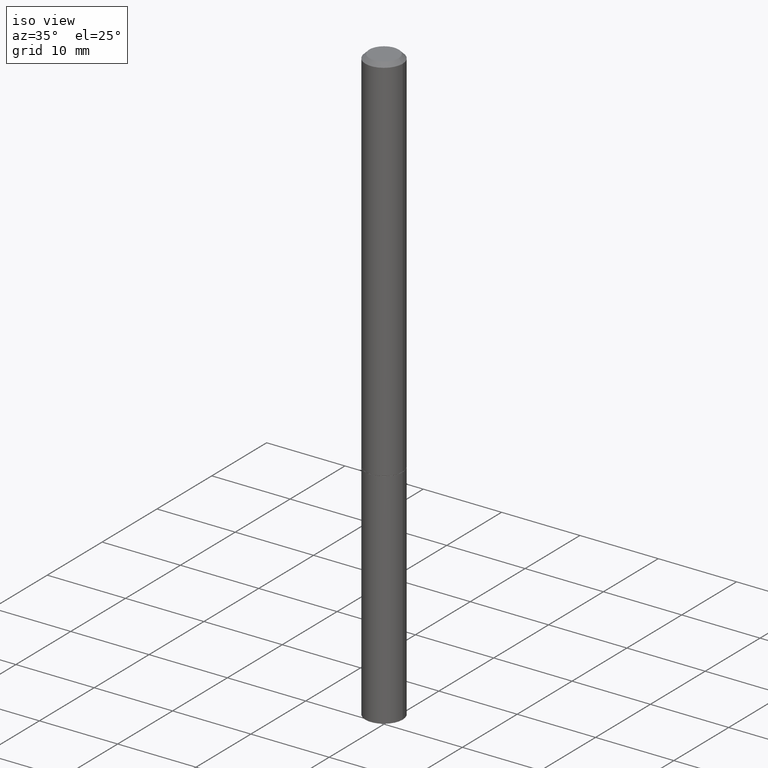
[diagram: clean part render]
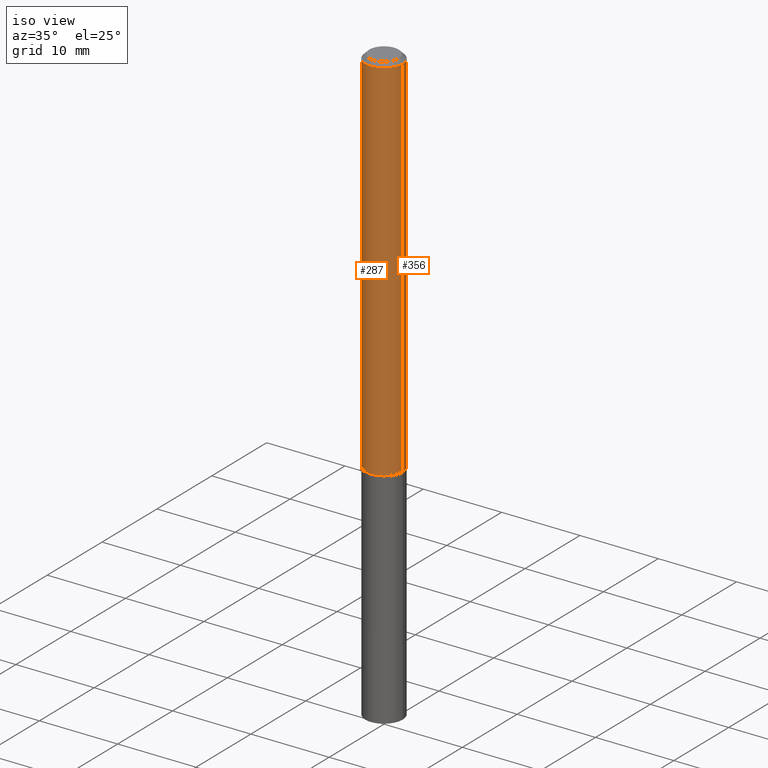
[diagram: same view with one multi-face feature highlighted, each face labeled with its STEP entity id]
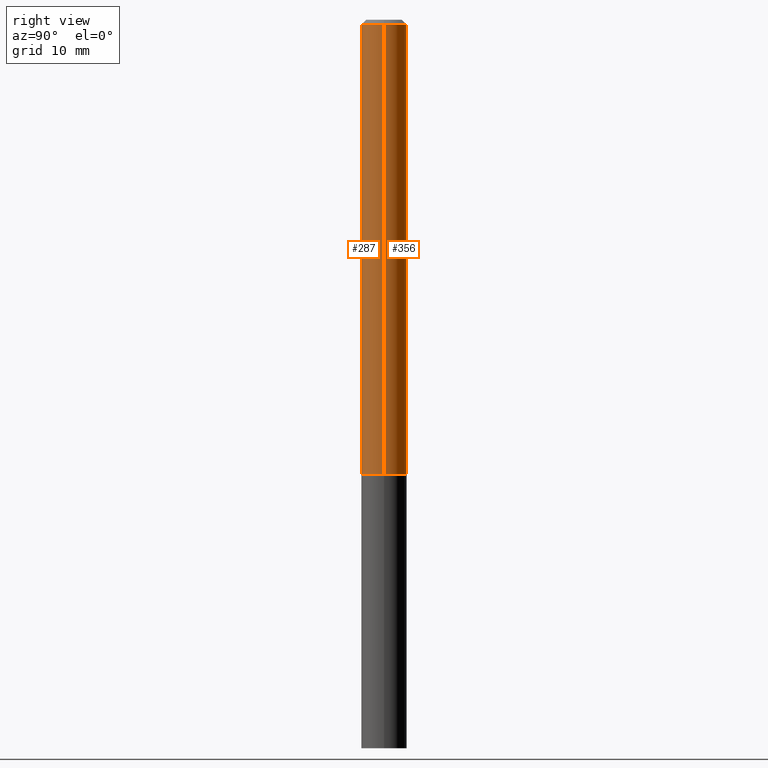
[diagram: same view with one multi-face feature highlighted, each face labeled with its STEP entity id]
A machine part, iso view. The highlighted faces form ONE feature: a constant-radius fillet chain: 2 tangent blend faces with common blend radius 2.3812 mm. The faces share edges in the B-rep.
A second angle (right view) of the same feature is appended — it is thin or edge-on in the first view.
Their STEP definitions:
[1] entity #356 (Cylinder):
#12 = ORIENTED_EDGE ( 'NONE', *, *, #382, .F. ) ;
#29 = EDGE_CURVE ( 'NONE', #230, #170, #193, .T. ) ;
#34 = DIRECTION ( 'NONE',  ( 1.000000000000000000, -6.982962677686261189E-15, 0.000000000000000000 ) ) ;
#50 = CARTESIAN_POINT ( 'NONE',  ( 0.09374999999999988898, -6.546527510330866166E-16, 4.571415727308684201E-30 ) ) ;
#51 = EDGE_CURVE ( 'NONE', #65, #170, #374, .T. ) ;
#62 = CIRCLE ( 'NONE', #181, 0.09375000000000001388 ) ;
#65 = VERTEX_POINT ( 'NONE', #378 ) ;
#102 = CARTESIAN_POINT ( 'NONE',  ( 4.582808542790945516E-29, -6.543036028992054911E-15, -1.874000000000000110 ) ) ;
#105 = DIRECTION ( 'NONE',  ( 1.000000000000000000, -6.982962677686265133E-15, 4.876176775795935793E-29 ) ) ;
#107 = ORIENTED_EDGE ( 'NONE', *, *, #51, .F. ) ;
#116 = VERTEX_POINT ( 'NONE', #125 ) ;
#125 = CARTESIAN_POINT ( 'NONE',  ( 0.09375000000000001388, -7.197688780025142415E-15, -1.874000000000000110 ) ) ;
#129 = ORIENTED_EDGE ( 'NONE', *, *, #187, .T. ) ;
#132 = VECTOR ( 'NONE', #266, 39.37007874015748143 ) ;
#139 = DIRECTION ( 'NONE',  ( -2.445468806185136597E-29, 3.491481338843145583E-15, 1.000000000000000000 ) ) ;
#142 = DIRECTION ( 'NONE',  ( -2.445468806185136597E-29, 3.491481338843145583E-15, 1.000000000000000000 ) ) ;
#143 = DIRECTION ( 'NONE',  ( 1.000000000000000000, -6.982962677686267499E-15, 0.000000000000000000 ) ) ;
#160 = DIRECTION ( 'NONE',  ( -2.445468806185136597E-29, 3.491481338843145583E-15, 1.000000000000000000 ) ) ;
#164 = CARTESIAN_POINT ( 'NONE',  ( -0.09374999999999976408, 5.848231242562229240E-16, -0.02000000000000001429 ) ) ;
#170 = VERTEX_POINT ( 'NONE', #164 ) ;
#181 = AXIS2_PLACEMENT_3D ( 'NONE', #102, #160, #34 ) ;
#187 = EDGE_CURVE ( 'NONE', #116, #230, #62, .T. ) ;
#191 = AXIS2_PLACEMENT_3D ( 'NONE', #211, #139, #143 ) ;
#193 = LINE ( 'NONE', #259, #321 ) ;
#211 = CARTESIAN_POINT ( 'NONE',  ( 4.890937612370275786E-31, -6.982962677686296539E-17, -0.02000000000000001429 ) ) ;
#213 = ORIENTED_EDGE ( 'NONE', *, *, #29, .T. ) ;
#226 = AXIS2_PLACEMENT_3D ( 'NONE', #352, #142, #105 ) ;
#227 = CARTESIAN_POINT ( 'NONE',  ( -0.09375000000000001388, -2.640299013109360447E-15, -1.874000000000000110 ) ) ;
#230 = VERTEX_POINT ( 'NONE', #227 ) ;
#231 = FACE_OUTER_BOUND ( 'NONE', #371, .T. ) ;
#259 = CARTESIAN_POINT ( 'NONE',  ( -0.09374999999999988898, 6.661338147750931354E-16, -4.611501647113968390E-30 ) ) ;
#262 = CYLINDRICAL_SURFACE ( 'NONE', #226, 0.09374999999999988898 ) ;
#266 = DIRECTION ( 'NONE',  ( -2.445468806185136877E-29, 3.491481338843145188E-15, 1.000000000000000000 ) ) ;
#321 = VECTOR ( 'NONE', #369, 39.37007874015748143 ) ;
#347 = LINE ( 'NONE', #50, #132 ) ;
#352 = CARTESIAN_POINT ( 'NONE',  ( 0.000000000000000000, 0.000000000000000000, 0.000000000000000000 ) ) ;
#356 = ADVANCED_FACE ( 'NONE', ( #231 ), #262, .T. ) ;
#369 = DIRECTION ( 'NONE',  ( -2.445468806185136877E-29, 3.491481338843145188E-15, 1.000000000000000000 ) ) ;
#371 = EDGE_LOOP ( 'NONE', ( #129, #213, #107, #12 ) ) ;
#374 = CIRCLE ( 'NONE', #191, 0.09374999999999976408 ) ;
#378 = CARTESIAN_POINT ( 'NONE',  ( 0.09374999999999976408, -7.130013140679424100E-16, -0.02000000000000001429 ) ) ;
#382 = EDGE_CURVE ( 'NONE', #116, #65, #347, .T. ) ;
[2] entity #287 (Cylinder):
#14 = CYLINDRICAL_SURFACE ( 'NONE', #64, 0.09374999999999988898 ) ;
#20 = AXIS2_PLACEMENT_3D ( 'NONE', #92, #217, #337 ) ;
#29 = EDGE_CURVE ( 'NONE', #230, #170, #193, .T. ) ;
#41 = DIRECTION ( 'NONE',  ( -2.445468806185136597E-29, 3.491481338843145583E-15, 1.000000000000000000 ) ) ;
#45 = ORIENTED_EDGE ( 'NONE', *, *, #382, .T. ) ;
#50 = CARTESIAN_POINT ( 'NONE',  ( 0.09374999999999988898, -6.546527510330866166E-16, 4.571415727308684201E-30 ) ) ;
#64 = AXIS2_PLACEMENT_3D ( 'NONE', #264, #41, #207 ) ;
#65 = VERTEX_POINT ( 'NONE', #378 ) ;
#66 = EDGE_CURVE ( 'NONE', #230, #116, #214, .T. ) ;
#70 = ORIENTED_EDGE ( 'NONE', *, *, #66, .T. ) ;
#92 = CARTESIAN_POINT ( 'NONE',  ( 4.890937612370275786E-31, -6.982962677686296539E-17, -0.02000000000000001429 ) ) ;
#112 = CARTESIAN_POINT ( 'NONE',  ( 4.582808542790945516E-29, -6.543036028992054911E-15, -1.874000000000000110 ) ) ;
#116 = VERTEX_POINT ( 'NONE', #125 ) ;
#125 = CARTESIAN_POINT ( 'NONE',  ( 0.09375000000000001388, -7.197688780025142415E-15, -1.874000000000000110 ) ) ;
#132 = VECTOR ( 'NONE', #266, 39.37007874015748143 ) ;
#136 = EDGE_LOOP ( 'NONE', ( #165, #70, #45, #141 ) ) ;
#140 = EDGE_CURVE ( 'NONE', #170, #65, #280, .T. ) ;
#141 = ORIENTED_EDGE ( 'NONE', *, *, #140, .F. ) ;
#147 = DIRECTION ( 'NONE',  ( 1.000000000000000000, -6.982962677686261189E-15, 0.000000000000000000 ) ) ;
#164 = CARTESIAN_POINT ( 'NONE',  ( -0.09374999999999976408, 5.848231242562229240E-16, -0.02000000000000001429 ) ) ;
#165 = ORIENTED_EDGE ( 'NONE', *, *, #29, .F. ) ;
#170 = VERTEX_POINT ( 'NONE', #164 ) ;
#176 = FACE_OUTER_BOUND ( 'NONE', #136, .T. ) ;
#178 = DIRECTION ( 'NONE',  ( -2.445468806185136597E-29, 3.491481338843145583E-15, 1.000000000000000000 ) ) ;
#193 = LINE ( 'NONE', #259, #321 ) ;
#207 = DIRECTION ( 'NONE',  ( 1.000000000000000000, -6.982962677686265133E-15, 4.876176775795935793E-29 ) ) ;
#214 = CIRCLE ( 'NONE', #253, 0.09375000000000001388 ) ;
#217 = DIRECTION ( 'NONE',  ( -2.445468806185136597E-29, 3.491481338843145583E-15, 1.000000000000000000 ) ) ;
#227 = CARTESIAN_POINT ( 'NONE',  ( -0.09375000000000001388, -2.640299013109360447E-15, -1.874000000000000110 ) ) ;
#230 = VERTEX_POINT ( 'NONE', #227 ) ;
#253 = AXIS2_PLACEMENT_3D ( 'NONE', #112, #178, #147 ) ;
#259 = CARTESIAN_POINT ( 'NONE',  ( -0.09374999999999988898, 6.661338147750931354E-16, -4.611501647113968390E-30 ) ) ;
#264 = CARTESIAN_POINT ( 'NONE',  ( 0.000000000000000000, 0.000000000000000000, 0.000000000000000000 ) ) ;
#266 = DIRECTION ( 'NONE',  ( -2.445468806185136877E-29, 3.491481338843145188E-15, 1.000000000000000000 ) ) ;
#280 = CIRCLE ( 'NONE', #20, 0.09374999999999976408 ) ;
#287 = ADVANCED_FACE ( 'NONE', ( #176 ), #14, .T. ) ;
#321 = VECTOR ( 'NONE', #369, 39.37007874015748143 ) ;
#337 = DIRECTION ( 'NONE',  ( 1.000000000000000000, -6.982962677686267499E-15, 0.000000000000000000 ) ) ;
#347 = LINE ( 'NONE', #50, #132 ) ;
#369 = DIRECTION ( 'NONE',  ( -2.445468806185136877E-29, 3.491481338843145188E-15, 1.000000000000000000 ) ) ;
#378 = CARTESIAN_POINT ( 'NONE',  ( 0.09374999999999976408, -7.130013140679424100E-16, -0.02000000000000001429 ) ) ;
#382 = EDGE_CURVE ( 'NONE', #116, #65, #347, .T. ) ;